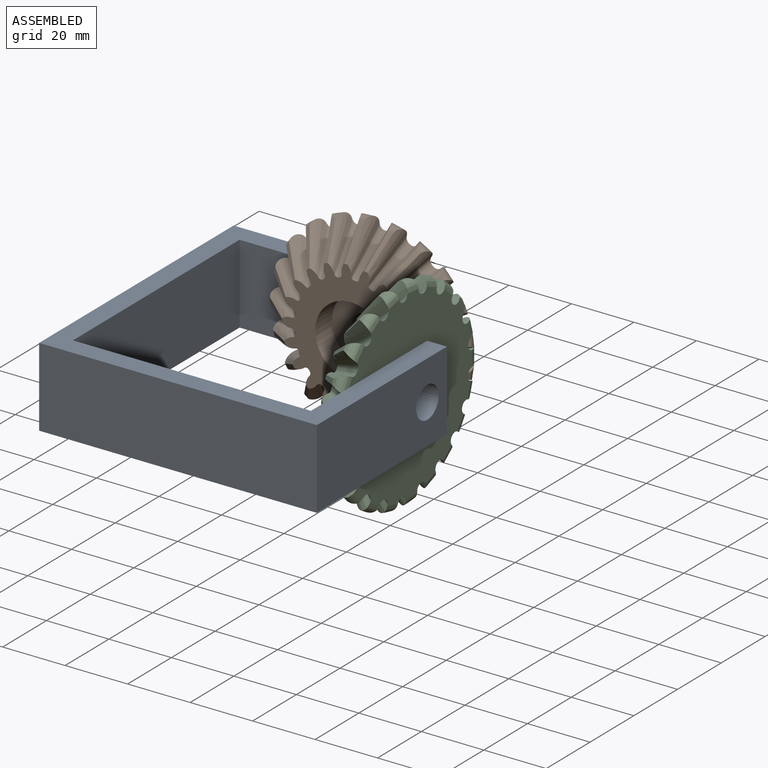
[diagram: assembled view]
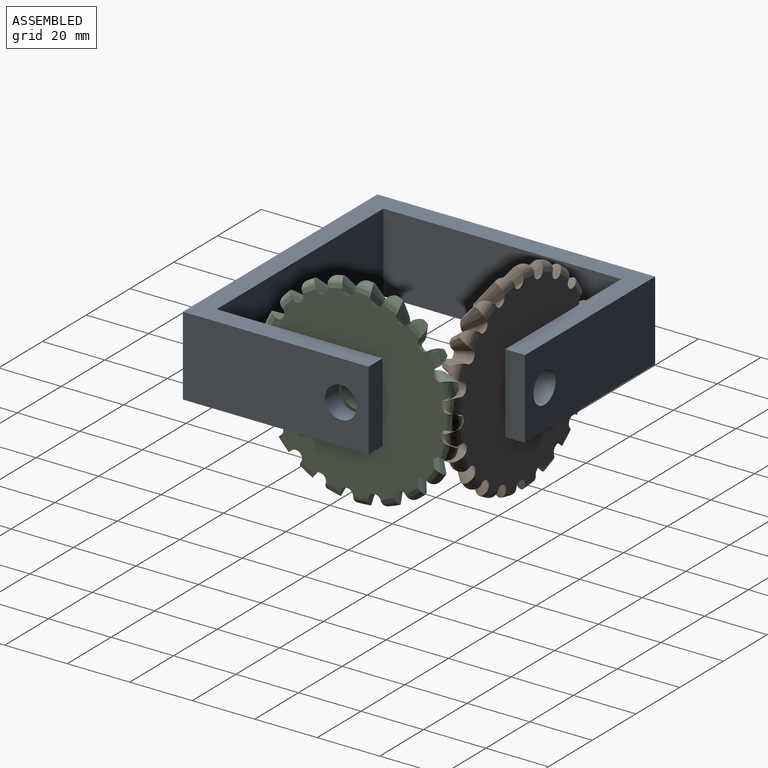
[diagram: assembled view, second angle]
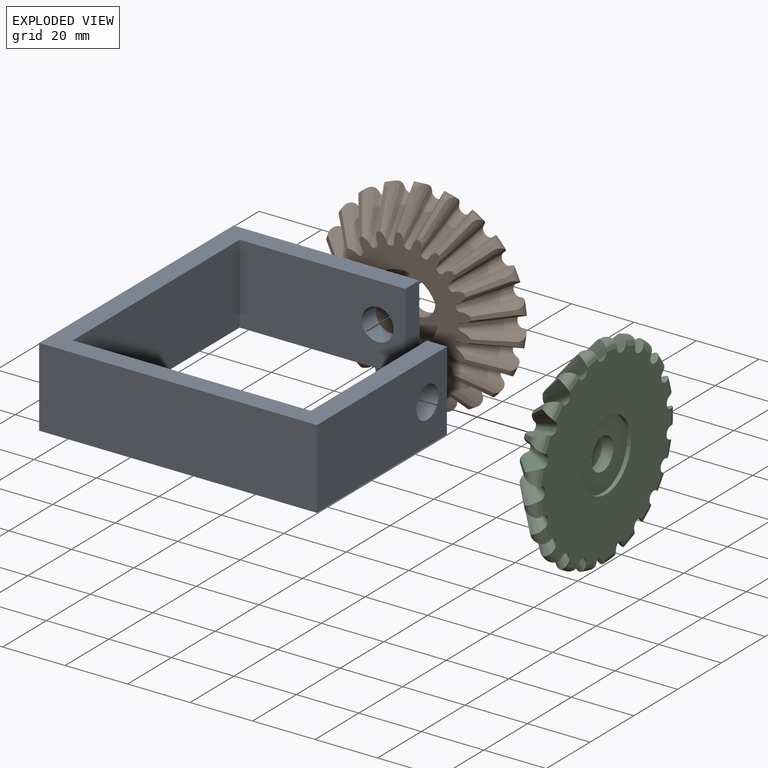
[diagram: exploded view]
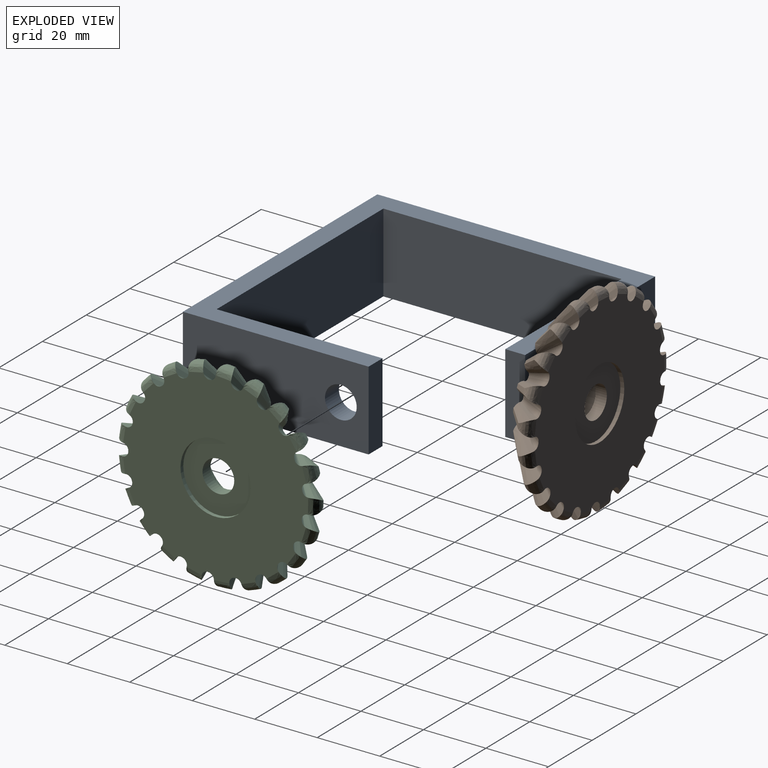
[diagram: exploded view, second angle]
ASSEMBLY  parts=3 mates=2
PART A: 14 faces, bbox 88.9x88.9x25.4 mm
  f0: plane 59.44x25.4mm, normal (0,1,0), area 1428.6mm2, adj f1,f9,f10,f11,f12
  f1: plane 88.9x25.4mm, normal (-1,0,0), area 2258.1mm2, adj f0,f2,f10,f11
  f2: plane 88.9x25.4mm, normal (0,-1,0), area 2258.1mm2, adj f1,f3,f10,f11
  f3: plane 59.44x25.4mm, normal (1,0,0), area 1428.6mm2, adj f2,f4,f10,f11,f13
  f4: plane 25.4x6.35mm, normal (0,1,0), area 161.3mm2, adj f3,f5,f10,f11
  f5: plane 53.09x25.4mm, normal (-1,0,0), area 1267.3mm2, adj f4,f6,f10,f11,f13
  f6: plane 76.2x25.4mm, normal (0,1,0), area 1935.5mm2, adj f5,f7,f10,f11
  f7: plane 76.2x25.4mm, normal (1,0,0), area 1935.5mm2, adj f6,f8,f10,f11
  f8: plane 53.09x25.4mm, normal (0,-1,0), area 1267.3mm2, adj f7,f9,f10,f11,f12
  f9: plane 25.4x6.35mm, normal (1,0,0), area 161.3mm2, adj f0,f8,f10,f11
  f10: plane 88.9x88.9mm, normal (0,0,1), area 1762.9mm2, adj f0,f1,f2,f3,f4,f5,f6,f7
  f11: plane 88.9x88.9mm, normal (0,0,-1), area 1762.9mm2, adj f0,f1,f2,f3,f4,f5,f6,f7
  f12: cylinder r=5.08mm len=10.16mm, axis (0,-1,0), area 202.7mm2, adj f0,f8
  f13: cylinder r=5.08mm len=10.16mm, axis (-1,0,0), area 202.7mm2, adj f3,f5
PART B: 154 faces, bbox 73.2x12.7x73.2 mm
  f0: cylinder r=5.08mm len=10.16mm, axis (0,-1,0), area 115.1mm2, adj f150,f152
  f1: cone r=17.69mm half-angle=39.1deg, axis (0,1,0), area 10.1mm2, adj f2,f8,f10,f145
  f2: bspline ~12.65x12.36mm, area 30.4mm2, adj f1,f7,f8,f9,f10
  f3: cone r=17.69mm half-angle=39.1deg, axis (0,1,0), area 10.1mm2, adj f4,f8,f10,f11
  f4: bspline ~12.65x12.36mm, area 30mm2, adj f3,f5,f8,f9,f10
  f5: bspline ~17.78x12.48mm, area 52.6mm2, adj f4,f6,f9,f10
  f6: bspline ~14.81x12.65mm, area 16.8mm2, adj f5,f7,f9,f10
  f7: bspline ~17.77x12.48mm, area 53mm2, adj f2,f6,f9,f10
  f8: plane 59.4x59.29mm, normal (0,1,0), area 2258.6mm2, adj f1,f2,f3,f4,f9,f11,f12,f13
  f9: bspline ~6.99x6.97mm, area 22.1mm2, adj f2,f4,f5,f6,f7,f8
  f10: plane 43.78x43.68mm, normal (0,-1,0), area 841.2mm2, adj f1,f2,f3,f4,f5,f6,f7,f11
  f11: bspline ~12.65x11.85mm, area 30.4mm2, adj f3,f8,f10,f16,f17
  f12: cone r=17.69mm half-angle=39.1deg, axis (0,1,0), area 10.1mm2, adj f8,f10,f13,f18
  f13: bspline ~12.5x11.67mm, area 30mm2, adj f8,f10,f12,f14,f17
  f14: bspline ~17.34x12.65mm, area 52.6mm2, adj f10,f13,f15,f17
  f15: bspline ~9.39x8.03mm, area 16.8mm2, adj f10,f14,f16,f17
  f16: bspline ~16.94x12.65mm, area 53mm2, adj f10,f11,f15,f17
  f17: bspline ~8.6x8.53mm, area 22.1mm2, adj f8,f11,f13,f14,f15,f16
  f18: bspline ~12.65x10.36mm, area 30.4mm2, adj f8,f10,f12,f23,f24
  f19: cone r=17.69mm half-angle=39.1deg, axis (0,1,0), area 10.1mm2, adj f8,f10,f20,f25
  f20: bspline ~12.5x10.08mm, area 30mm2, adj f8,f10,f19,f21,f24
  f21: bspline ~15.21x12.65mm, area 52.6mm2, adj f10,f20,f22,f24
  f22: bspline ~8.55x8.03mm, area 16.8mm2, adj f10,f21,f23,f24
  f23: bspline ~14.31x12.48mm, area 53mm2, adj f10,f18,f22,f24
  f24: bspline ~9.54x9.5mm, area 22.1mm2, adj f8,f18,f20,f21,f22,f23
  f25: bspline ~12.5x9.53mm, area 30.4mm2, adj f8,f10,f19,f30,f31
  f26: cone r=17.69mm half-angle=39.1deg, axis (0,1,0), area 10.1mm2, adj f8,f10,f27,f32
  f27: bspline ~12.65x9.83mm, area 30mm2, adj f8,f10,f26,f28,f31
  f28: bspline ~13.59x12.65mm, area 52.6mm2, adj f10,f27,f29,f31
  f29: bspline ~12.65x12.44mm, area 16.8mm2, adj f10,f28,f30,f31
  f30: bspline ~14.42x12.65mm, area 53mm2, adj f10,f25,f29,f31
  f31: bspline ~9.62x9.62mm, area 22.1mm2, adj f8,f25,f27,f28,f29,f30
  f32: bspline ~12.65x11.48mm, area 30.4mm2, adj f8,f10,f26,f37,f38
  f33: cone r=17.69mm half-angle=39.1deg, axis (0,1,0), area 10.1mm2, adj f8,f10,f34,f39
  f34: bspline ~12.5x11.42mm, area 30mm2, adj f8,f10,f33,f35,f38
  f35: bspline ~16.44x12.65mm, area 52.6mm2, adj f10,f34,f36,f38
  f36: bspline ~14.28x12.65mm, area 16.8mm2, adj f10,f35,f37,f38
  f37: bspline ~16.92x12.65mm, area 53mm2, adj f10,f32,f36,f38
  f38: bspline ~8.88x8.86mm, area 22.1mm2, adj f8,f32,f34,f35,f36,f37
  f39: bspline ~12.5x12.19mm, area 30.4mm2, adj f8,f10,f33,f44,f45
  f40: cone r=17.69mm half-angle=39.1deg, axis (0,1,0), area 10.1mm2, adj f8,f10,f41,f46
  f41: bspline ~12.5x12.2mm, area 30mm2, adj f8,f10,f40,f42,f45
  f42: bspline ~17.83x12.65mm, area 52.6mm2, adj f10,f41,f43,f45
  f43: bspline ~14.86x12.65mm, area 16.8mm2, adj f10,f42,f44,f45
  f44: bspline ~17.92x12.65mm, area 53mm2, adj f10,f39,f43,f45
  f45: bspline ~7.36x7.3mm, area 22.1mm2, adj f8,f39,f41,f42,f43,f44
  f46: bspline ~12.65x12.07mm, area 30.4mm2, adj f8,f10,f40,f51,f52
  f47: cone r=17.69mm half-angle=39.1deg, axis (0,1,0), area 10.1mm2, adj f8,f10,f48,f53
  f48: bspline ~12.5x11.91mm, area 30mm2, adj f8,f10,f47,f49,f52
  f49: bspline ~17.64x12.65mm, area 52.6mm2, adj f10,f48,f50,f52
  f50: bspline ~9.47x8.03mm, area 16.8mm2, adj f10,f49,f51,f52
  f51: bspline ~17.18x12.48mm, area 53mm2, adj f10,f46,f50,f52
  f52: bspline ~8.24x8.17mm, area 22.1mm2, adj f8,f46,f48,f49,f50,f51
  f53: bspline ~12.65x10.81mm, area 30.4mm2, adj f8,f10,f47,f58,f59
  f54: cone r=17.69mm half-angle=39.1deg, axis (0,1,0), area 10.1mm2, adj f8,f10,f55,f60
  f55: bspline ~12.65x10.66mm, area 30mm2, adj f8,f10,f54,f56,f59
  f56: bspline ~15.88x12.65mm, area 52.6mm2, adj f10,f55,f57,f59
  f57: bspline ~13.58x12.65mm, area 16.8mm2, adj f10,f56,f58,f59
  f58: bspline ~15.2x12.65mm, area 53mm2, adj f10,f53,f57,f59
  f59: bspline ~9.38x9.33mm, area 22.1mm2, adj f8,f53,f55,f56,f57,f58
  f60: bspline ~12.65x9.01mm, area 30.4mm2, adj f8,f10,f54,f65,f66
  f61: cone r=17.69mm half-angle=39.1deg, axis (0,1,0), area 10.1mm2, adj f8,f10,f62,f67
  f62: bspline ~12.65x9.27mm, area 30mm2, adj f8,f10,f61,f63,f66
  f63: bspline ~12.61x12.55mm, area 52.6mm2, adj f10,f62,f64,f66
  f64: bspline ~12.65x11.8mm, area 16.8mm2, adj f10,f63,f65,f66
  f65: bspline ~13.48x12.48mm, area 53mm2, adj f10,f60,f64,f66
  f66: bspline ~9.68x9.67mm, area 22.1mm2, adj f8,f60,f62,f63,f64,f65
  f67: bspline ~12.5x11mm, area 30.4mm2, adj f8,f10,f61,f72,f73
  f68: cone r=17.69mm half-angle=39.1deg, axis (0,1,0), area 10.1mm2, adj f8,f10,f69,f74
  f69: bspline ~12.5x11.08mm, area 30mm2, adj f8,f10,f68,f70,f73
  f70: bspline ~15.71x12.48mm, area 52.6mm2, adj f10,f69,f71,f73
  f71: bspline ~13.94x12.65mm, area 16.8mm2, adj f10,f70,f72,f73
  f72: bspline ~16.43x12.65mm, area 53mm2, adj f10,f67,f71,f73
  f73: bspline ~9.15x9.13mm, area 22.1mm2, adj f8,f67,f69,f70,f71,f72
  f74: bspline ~12.5x12.09mm, area 30.4mm2, adj f8,f10,f68,f79,f80
  f75: cone r=17.69mm half-angle=39.1deg, axis (0,1,0), area 10.1mm2, adj f8,f10,f76,f81
  f76: bspline ~12.5x12.1mm, area 30mm2, adj f8,f10,f75,f77,f80
  f77: bspline ~17.63x12.65mm, area 52.6mm2, adj f10,f76,f78,f80
  f78: bspline ~9.48x8.03mm, area 16.8mm2, adj f10,f77,f79,f80
  f79: bspline ~17.82x12.65mm, area 53mm2, adj f10,f74,f78,f80
  f80: bspline ~7.81x7.76mm, area 22.1mm2, adj f8,f74,f76,f77,f78,f79
  f81: bspline ~12.5x12.1mm, area 30.4mm2, adj f8,f10,f75,f86,f87
  f82: cone r=17.69mm half-angle=39.1deg, axis (0,1,0), area 10.1mm2, adj f8,f10,f83,f88
  f83: bspline ~12.5x12.09mm, area 30mm2, adj f8,f10,f82,f84,f87
  f84: bspline ~17.83x12.65mm, area 52.6mm2, adj f10,f83,f85,f87
  f85: bspline ~9.49x8.03mm, area 16.8mm2, adj f10,f84,f86,f87
  f86: bspline ~17.63x12.65mm, area 53mm2, adj f10,f81,f85,f87
  f87: bspline ~7.84x7.76mm, area 22.1mm2, adj f8,f81,f83,f84,f85,f86
  f88: bspline ~12.5x11.09mm, area 30.4mm2, adj f8,f10,f82,f93,f94
  f89: cone r=17.69mm half-angle=39.1deg, axis (0,1,0), area 10.1mm2, adj f8,f10,f90,f95
  f90: bspline ~12.65x11.1mm, area 30mm2, adj f8,f10,f89,f91,f94
  f91: bspline ~16.32x12.48mm, area 52.6mm2, adj f10,f90,f92,f94
  f92: bspline ~14x12.65mm, area 16.8mm2, adj f10,f91,f93,f94
  f93: bspline ~15.87x12.65mm, area 53mm2, adj f10,f88,f92,f94
  f94: bspline ~9.17x9.12mm, area 22.1mm2, adj f8,f88,f90,f91,f92,f93
  f95: bspline ~12.5x9.18mm, area 30.4mm2, adj f8,f10,f89,f100,f101
  f96: cone r=17.69mm half-angle=39.1deg, axis (0,1,0), area 10.1mm2, adj f8,f10,f97,f102
  f97: bspline ~12.5x8.93mm, area 30mm2, adj f8,f10,f96,f98,f101
  f98: bspline ~13.62x12.65mm, area 52.6mm2, adj f10,f97,f99,f101
  f99: bspline ~12.65x11.89mm, area 16.8mm2, adj f10,f98,f100,f101
  f100: bspline ~12.58x12.57mm, area 53mm2, adj f10,f95,f99,f101
  f101: bspline ~9.69x9.66mm, area 22.1mm2, adj f8,f95,f97,f98,f99,f100
  f102: bspline ~12.5x10.57mm, area 30.4mm2, adj f8,f10,f96,f107,f108
  f103: cone r=17.69mm half-angle=39.1deg, axis (0,1,0), area 10.1mm2, adj f8,f10,f104,f109
  f104: bspline ~12.5x10.68mm, area 30mm2, adj f8,f10,f103,f105,f108
  f105: bspline ~15.18x12.65mm, area 52.6mm2, adj f10,f104,f106,f108
  f106: bspline ~13.51x12.65mm, area 16.8mm2, adj f10,f105,f107,f108
  f107: bspline ~15.85x12.65mm, area 53mm2, adj f10,f102,f106,f108
  f108: bspline ~9.36x9.35mm, area 22.1mm2, adj f8,f102,f104,f105,f106,f107
  f109: bspline ~12.5x11.91mm, area 30.4mm2, adj f8,f10,f103,f114,f115
  f110: cone r=17.69mm half-angle=39.1deg, axis (0,1,0), area 10.1mm2, adj f8,f10,f111,f116
  f111: bspline ~12.65x12.07mm, area 30mm2, adj f8,f10,f110,f112,f115
  f112: bspline ~17.33x12.65mm, area 52.6mm2, adj f10,f111,f113,f115
  f113: bspline ~14.74x12.65mm, area 16.8mm2, adj f10,f112,f114,f115
  f114: bspline ~17.62x12.65mm, area 53mm2, adj f10,f109,f113,f115
  f115: bspline ~8.21x8.17mm, area 22.1mm2, adj f8,f109,f111,f112,f113,f114
  f116: bspline ~12.65x12.33mm, area 30.4mm2, adj f8,f10,f110,f121,f122
  f117: cone r=17.69mm half-angle=39.1deg, axis (0,1,0), area 10.1mm2, adj f8,f10,f118,f123
  f118: bspline ~12.5x12.19mm, area 30mm2, adj f8,f10,f117,f119,f122
  f119: bspline ~17.93x12.65mm, area 52.6mm2, adj f10,f118,f120,f122
  f120: bspline ~9.47x8.03mm, area 16.8mm2, adj f10,f119,f121,f122
  f121: bspline ~17.83x12.65mm, area 53mm2, adj f10,f116,f120,f122
  f122: bspline ~7.39x7.3mm, area 22.1mm2, adj f8,f116,f118,f119,f120,f121
  f123: bspline ~12.5x11.43mm, area 30.4mm2, adj f8,f10,f117,f128,f129
  f124: cone r=17.69mm half-angle=39.1deg, axis (0,1,0), area 10.1mm2, adj f8,f10,f125,f130
  f125: bspline ~12.65x11.48mm, area 30mm2, adj f8,f10,f124,f126,f129
  f126: bspline ~16.94x12.65mm, area 52.6mm2, adj f10,f125,f127,f129
  f127: bspline ~9.25x8.03mm, area 16.8mm2, adj f10,f126,f128,f129
  f128: bspline ~16.45x12.65mm, area 53mm2, adj f10,f123,f127,f129
  f129: bspline ~8.91x8.85mm, area 22.1mm2, adj f8,f123,f125,f126,f127,f128
  f130: bspline ~12.65x9.85mm, area 30.4mm2, adj f8,f10,f124,f135,f136
  f131: cone r=17.69mm half-angle=39.1deg, axis (0,1,0), area 10.1mm2, adj f8,f10,f132,f137
  f132: bspline ~12.5x9.53mm, area 30mm2, adj f8,f10,f131,f133,f136
  f133: bspline ~14.45x12.65mm, area 52.6mm2, adj f10,f132,f134,f136
  f134: bspline ~8.21x8.03mm, area 16.8mm2, adj f10,f133,f135,f136
  f135: bspline ~13.48x12.48mm, area 53mm2, adj f10,f130,f134,f136
  f136: bspline ~9.64x9.61mm, area 22.1mm2, adj f8,f130,f132,f133,f134,f135
  f137: bspline ~12.5x10.08mm, area 30.4mm2, adj f8,f10,f131,f142,f143
  f138: cone r=17.69mm half-angle=39.1deg, axis (0,1,0), area 10.1mm2, adj f8,f10,f139,f144
  f139: bspline ~12.65x10.34mm, area 30mm2, adj f8,f10,f138,f140,f143
  f140: bspline ~14.29x12.48mm, area 52.6mm2, adj f10,f139,f141,f143
  f141: bspline ~8.5x8.03mm, area 16.8mm2, adj f10,f140,f142,f143
  f142: bspline ~15.18x12.65mm, area 53mm2, adj f10,f137,f141,f143
  f143: bspline ~9.51x9.51mm, area 22.1mm2, adj f8,f137,f139,f140,f141,f142
  f144: bspline ~12.5x11.67mm, area 30.4mm2, adj f8,f10,f138,f148,f149
  f145: bspline ~12.65x11.84mm, area 30mm2, adj f1,f8,f10,f146,f149
  f146: bspline ~16.93x12.65mm, area 52.6mm2, adj f10,f145,f147,f149
  f147: bspline ~9.36x8.03mm, area 16.8mm2, adj f10,f146,f148,f149
  f148: bspline ~17.32x12.65mm, area 53mm2, adj f10,f144,f147,f149
  f149: bspline ~8.57x8.54mm, area 22.1mm2, adj f8,f144,f145,f146,f147,f148
  f150: plane 22.48x22.48mm, normal (0,-1,0), area 315.8mm2, adj f0,f151
  f151: cylinder r=11.24mm len=22.48mm, axis (0,-1,0), area 538.1mm2, adj f10,f150
  f152: plane 22.48x22.48mm, normal (0,1,0), area 315.8mm2, adj f0,f153
  f153: cylinder r=11.24mm len=22.48mm, axis (0,1,0), area 89.7mm2, adj f8,f152
PART C: same geometry as B
PLACE A at identity fixed
PLACE B rot(axis=(0,1,0),13.5deg) t=(-32,-12.7,12.7)mm
PLACE C rot(axis=(0.11,0.11,-0.99),90.7deg) t=(-12.7,-32,12.7)mm
MATE revolute A.f12 <-> B.f26  axis (0,-1,0) through (-32,0,12.7)mm
MATE revolute A.f13 <-> C.f26  axis (-1,0,0) through (0,-32,12.7)mm
